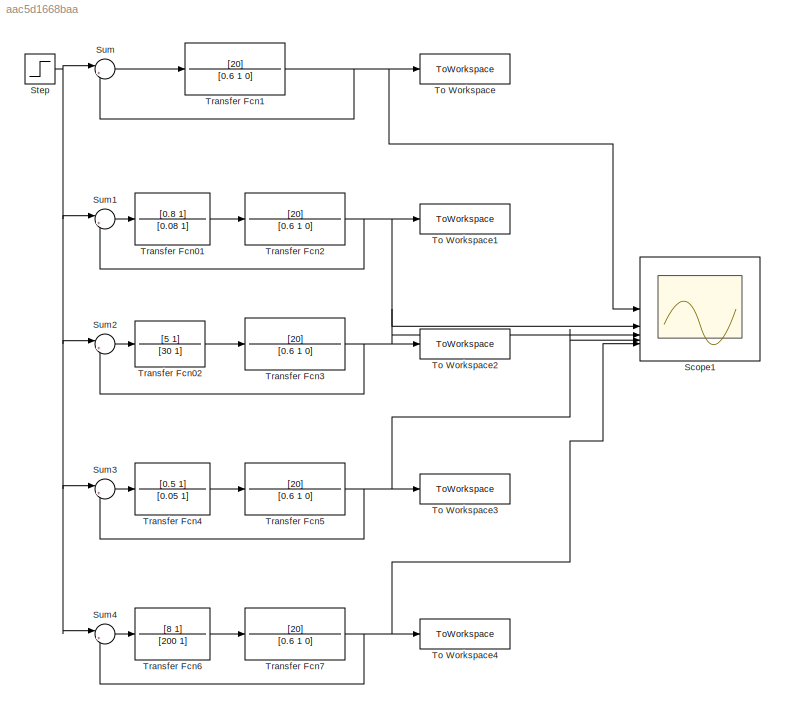
MODEL slx_aac5d1668baa
KIND model
CONFIG AbsTol = auto
CONFIG EnableMultiTasking = off
CONFIG FixedStep = auto
CONFIG MaxStep = auto
CONFIG MinStep = auto
CONFIG RelTol = 1e-3
CONFIG SampleTimeConstraint = Unconstrained
CONFIG SolverName = VariableStepAuto
CONFIG StartTime = 0.0
CONFIG StopTime = 10.0
BLOCK [Scope] Scope1
  Floating = off
  NumInputPorts = 5
  ScopeSpecificationString = Simulink.scopes.TimeScopeBlockCfg('CurrentConfiguration', extmgr.ConfigurationSet(extmgr.Configuration('Core','General UI',true,'FigureColor',[0 0 0]),extmgr.Configuration('Core','Source UI',true),extmgr.Configuration('Sources','WiredSimulink',true,'DataLoggingVariableName','ScopeData1'),extmgr.Configuration('Visuals','Time Domain',true,'SerializedDisplays',{struct('MinYLimReal','-0.20405','MaxYLi...<+1694ch>
BLOCK [Step] Step
  SampleTime = 0
BLOCK [Sum] Sum
  Inputs = |+-
BLOCK [Sum] Sum1
  Inputs = |+-
BLOCK [Sum] Sum2
  Inputs = |+-
BLOCK [Sum] Sum3
  Inputs = |+-
BLOCK [Sum] Sum4
  Inputs = |+-
BLOCK [ToWorkspace] To Workspace
  FixptAsFi = on
  MaxDataPoints = inf
  SampleTime = 0.01
  SaveFormat = Timeseries
  VariableName = simout1
BLOCK [ToWorkspace] To Workspace1
  FixptAsFi = on
  MaxDataPoints = inf
  SampleTime = 0.01
  SaveFormat = Timeseries
  VariableName = simout2
BLOCK [ToWorkspace] To Workspace2
  FixptAsFi = on
  MaxDataPoints = inf
  SampleTime = 0.01
  SaveFormat = Timeseries
  VariableName = simout3
BLOCK [ToWorkspace] To Workspace3
  FixptAsFi = on
  MaxDataPoints = inf
  SampleTime = 0.01
  SaveFormat = Timeseries
  VariableName = simout4
BLOCK [ToWorkspace] To Workspace4
  FixptAsFi = on
  MaxDataPoints = inf
  SampleTime = 0.01
  SaveFormat = Timeseries
  VariableName = simout5
BLOCK [TransferFcn] Transfer Fcn01
  Denominator = [0.08 1]
  Numerator = [0.8 1]
BLOCK [TransferFcn] Transfer Fcn02
  Denominator = [30 1]
  Numerator = [5 1]
BLOCK [TransferFcn] Transfer Fcn1
  Denominator = [0.6 1 0]
  Numerator = [20]
BLOCK [TransferFcn] Transfer Fcn2
  Denominator = [0.6 1 0]
  Numerator = [20]
BLOCK [TransferFcn] Transfer Fcn3
  Denominator = [0.6 1 0]
  Numerator = [20]
BLOCK [TransferFcn] Transfer Fcn4
  Denominator = [0.05 1]
  Numerator = [0.5 1]
BLOCK [TransferFcn] Transfer Fcn5
  Denominator = [0.6 1 0]
  Numerator = [20]
BLOCK [TransferFcn] Transfer Fcn6
  Denominator = [200 1]
  Numerator = [8 1]
BLOCK [TransferFcn] Transfer Fcn7
  Denominator = [0.6 1 0]
  Numerator = [20]
NET Step:1 -> Sum1:1, Sum2:1, Sum3:1, Sum4:1, Sum:1
LINE Sum1:1 -> Transfer Fcn01:1
LINE Sum2:1 -> Transfer Fcn02:1
LINE Sum3:1 -> Transfer Fcn4:1
LINE Sum4:1 -> Transfer Fcn6:1
LINE Sum:1 -> Transfer Fcn1:1
LINE Transfer Fcn01:1 -> Transfer Fcn2:1
LINE Transfer Fcn02:1 -> Transfer Fcn3:1
NET Transfer Fcn1:1 -> Scope1:1, Sum:2, To Workspace:1
NET Transfer Fcn2:1 -> Scope1:2, Sum1:2, To Workspace1:1
NET Transfer Fcn3:1 -> Scope1:3, Sum2:2, To Workspace2:1
LINE Transfer Fcn4:1 -> Transfer Fcn5:1
NET Transfer Fcn5:1 -> Scope1:4, Sum3:2, To Workspace3:1
LINE Transfer Fcn6:1 -> Transfer Fcn7:1
NET Transfer Fcn7:1 -> Scope1:5, Sum4:2, To Workspace4:1
note: NET lines group one-source signal fan-out (src -> all destinations, sorted); 1:1 wires keep LINE
